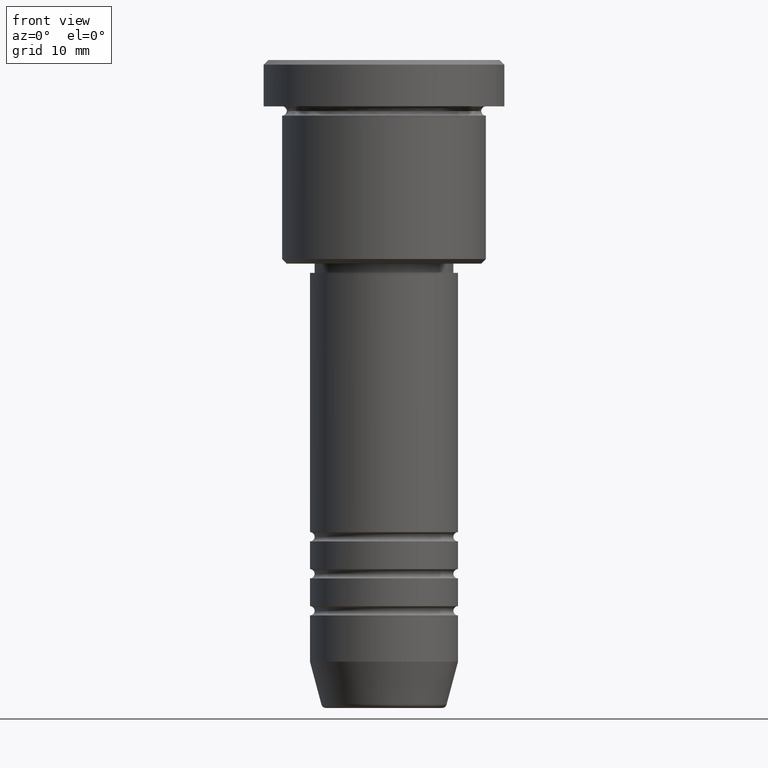
[diagram: clean part render]
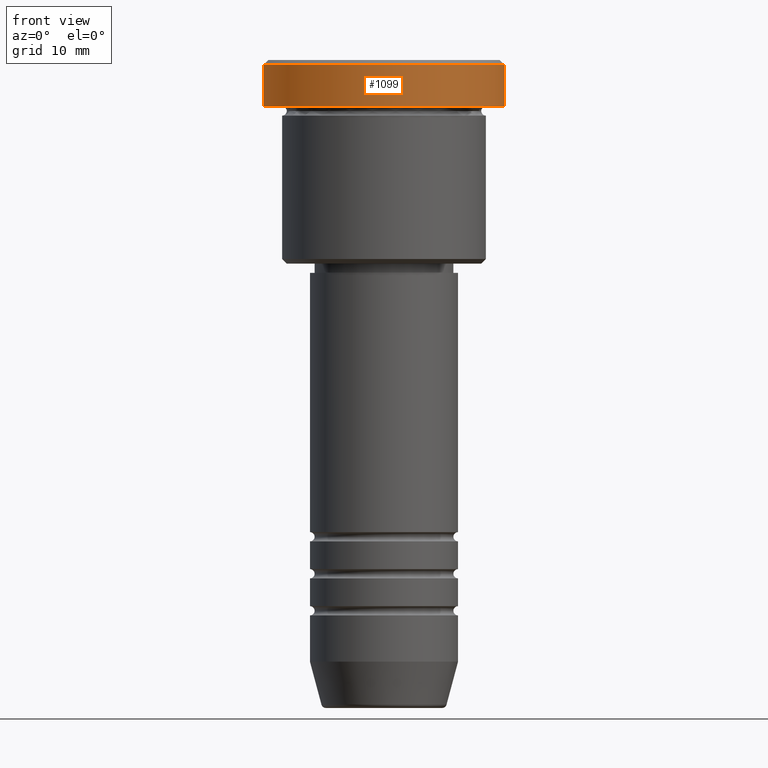
[diagram: same view with one face highlighted and labeled with its STEP entity id]
A machine part, front view. The second image highlights one B-rep face of the part: STEP entity #1099.
In plain terms, the highlighted cylindrical surface (partial cylindrical patch) has radius 13 mm, axis along (-0, -0, 1).
Its self-contained STEP definition (entity closure, byte-faithful):
#39 = DIRECTION ( 'NONE',  ( 0.000000000000000000, 0.000000000000000000, -1.000000000000000000 ) ) ;
#122 = CIRCLE ( 'NONE', #982, 13.00000000000000000 ) ;
#169 = VERTEX_POINT ( 'NONE', #692 ) ;
#188 = CARTESIAN_POINT ( 'NONE',  ( -13.00000000000000000, 1.592040838891559095E-15, -0.5000000000000004441 ) ) ;
#234 = DIRECTION ( 'NONE',  ( -0.000000000000000000, -0.000000000000000000, 1.000000000000000000 ) ) ;
#241 = VECTOR ( 'NONE', #658, 1000.000000000000000 ) ;
#309 = FACE_OUTER_BOUND ( 'NONE', #599, .T. ) ;
#396 = CARTESIAN_POINT ( 'NONE',  ( 13.00000000000000000, 0.000000000000000000, 0.000000000000000000 ) ) ;
#442 = LINE ( 'NONE', #827, #476 ) ;
#455 = EDGE_CURVE ( 'NONE', #169, #655, #122, .T. ) ;
#476 = VECTOR ( 'NONE', #1007, 1000.000000000000000 ) ;
#496 = DIRECTION ( 'NONE',  ( 1.000000000000000000, 0.000000000000000000, 0.000000000000000000 ) ) ;
#543 = AXIS2_PLACEMENT_3D ( 'NONE', #956, #39, #496 ) ;
#549 = CARTESIAN_POINT ( 'NONE',  ( 13.00000000000000000, 0.000000000000000000, -5.000000000000000000 ) ) ;
#599 = EDGE_LOOP ( 'NONE', ( #1154, #953, #1139, #738 ) ) ;
#603 = DIRECTION ( 'NONE',  ( -0.000000000000000000, -0.000000000000000000, 1.000000000000000000 ) ) ;
#611 = DIRECTION ( 'NONE',  ( 1.000000000000000000, 0.000000000000000000, 0.000000000000000000 ) ) ;
#641 = EDGE_CURVE ( 'NONE', #169, #649, #442, .T. ) ;
#649 = VERTEX_POINT ( 'NONE', #188 ) ;
#655 = VERTEX_POINT ( 'NONE', #549 ) ;
#658 = DIRECTION ( 'NONE',  ( -0.000000000000000000, -0.000000000000000000, 1.000000000000000000 ) ) ;
#681 = CARTESIAN_POINT ( 'NONE',  ( 0.000000000000000000, 0.000000000000000000, -5.000000000000000000 ) ) ;
#692 = CARTESIAN_POINT ( 'NONE',  ( -13.00000000000000000, 1.592040838891559095E-15, -5.000000000000000000 ) ) ;
#737 = LINE ( 'NONE', #396, #241 ) ;
#738 = ORIENTED_EDGE ( 'NONE', *, *, #1120, .T. ) ;
#827 = CARTESIAN_POINT ( 'NONE',  ( -13.00000000000000000, 1.592040838891559095E-15, 0.000000000000000000 ) ) ;
#854 = CARTESIAN_POINT ( 'NONE',  ( 0.000000000000000000, 0.000000000000000000, 0.000000000000000000 ) ) ;
#910 = AXIS2_PLACEMENT_3D ( 'NONE', #854, #603, #947 ) ;
#912 = EDGE_CURVE ( 'NONE', #655, #1068, #737, .T. ) ;
#947 = DIRECTION ( 'NONE',  ( 1.000000000000000000, 0.000000000000000000, 0.000000000000000000 ) ) ;
#951 = CYLINDRICAL_SURFACE ( 'NONE', #910, 13.00000000000000000 ) ;
#953 = ORIENTED_EDGE ( 'NONE', *, *, #455, .T. ) ;
#956 = CARTESIAN_POINT ( 'NONE',  ( 0.000000000000000000, 0.000000000000000000, -0.5000000000000004441 ) ) ;
#982 = AXIS2_PLACEMENT_3D ( 'NONE', #681, #234, #611 ) ;
#1007 = DIRECTION ( 'NONE',  ( -0.000000000000000000, -0.000000000000000000, 1.000000000000000000 ) ) ;
#1047 = CARTESIAN_POINT ( 'NONE',  ( 13.00000000000000000, 0.000000000000000000, -0.5000000000000004441 ) ) ;
#1068 = VERTEX_POINT ( 'NONE', #1047 ) ;
#1098 = CIRCLE ( 'NONE', #543, 13.00000000000000000 ) ;
#1099 = ADVANCED_FACE ( 'NONE', ( #309 ), #951, .T. ) ;
#1120 = EDGE_CURVE ( 'NONE', #1068, #649, #1098, .T. ) ;
#1139 = ORIENTED_EDGE ( 'NONE', *, *, #912, .T. ) ;
#1154 = ORIENTED_EDGE ( 'NONE', *, *, #641, .F. ) ;